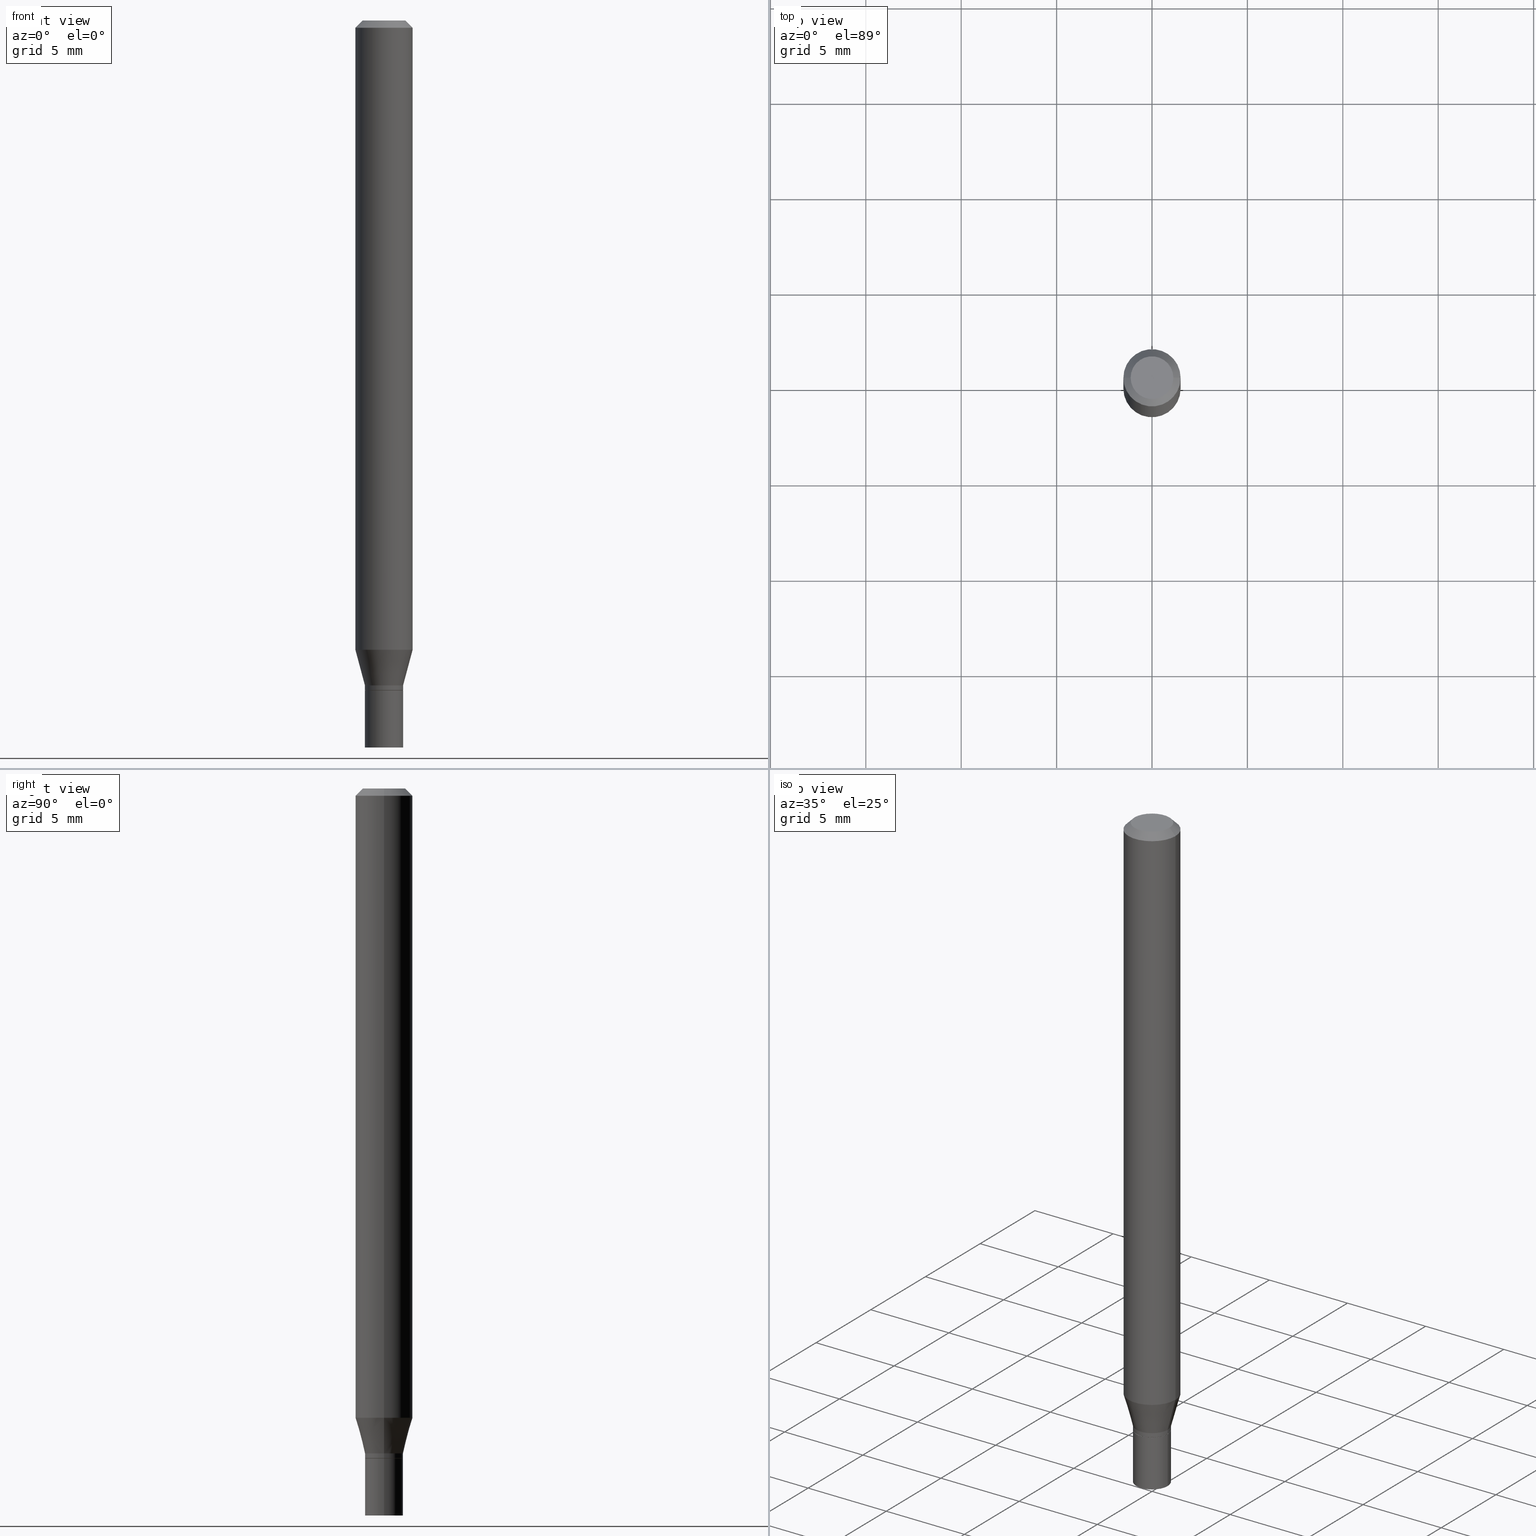
[diagram: canonical four-view strip — front | top / right | iso, engineering-drawing reading convention]
A machine part, canonical four-view strip (front | top / right | iso — engineering-drawing reading convention). The complete STEP part file that produces these views, byte-faithful:
ISO-10303-21;
HEADER;
FILE_DESCRIPTION (( 'STEP AP203' ),
    '1' );
FILE_NAME ('05087.STEP',
    '2024-03-14T17:48:20',
    ( '' ),
    ( '' ),
    'SwSTEP 2.0',
    'SolidWorks 2023',
    '' );
FILE_SCHEMA (( 'CONFIG_CONTROL_DESIGN' ));
ENDSEC;

DATA;
#1 = EDGE_CURVE ( 'NONE', #387, #183, #13, .T. ) ;
#2 = CC_DESIGN_DATE_AND_TIME_ASSIGNMENT ( #299, #267, ( #56 ) ) ;
#3 = LINE ( 'NONE', #316, #199 ) ;
#4 = CARTESIAN_POINT ( 'NONE',  ( 3.354938655205389469E-29, -4.789963248758912396E-15, -1.371900000000000119 ) ) ;
#5 = CYLINDRICAL_SURFACE ( 'NONE', #306, 0.05904999999999999832 ) ;
#6 = DIRECTION ( 'NONE',  ( -1.000000000000000000, 6.982962677686266711E-15, 0.000000000000000000 ) ) ;
#7 = ADVANCED_FACE ( 'NONE', ( #93 ), #226, .F. ) ;
#8 = DIRECTION ( 'NONE',  ( -0.7071067811865656694, 7.493145998870420424E-15, 0.7071067811865294761 ) ) ;
#9 = CIRCLE ( 'NONE', #432, 0.03935000000000000303 ) ;
#10 = ORIENTED_EDGE ( 'NONE', *, *, #29, .F. ) ;
#11 = COORDINATED_UNIVERSAL_TIME_OFFSET ( 5, 0, .BEHIND. ) ;
#12 = ORIENTED_EDGE ( 'NONE', *, *, #370, .F. ) ;
#13 = CIRCLE ( 'NONE', #282, 0.04404999999999999888 ) ;
#14 = AXIS2_PLACEMENT_3D ( 'NONE', #165, #169, #456 ) ;
#15 = EDGE_LOOP ( 'NONE', ( #122, #462, #269, #20 ) ) ;
#16 = MANIFOLD_SOLID_BREP ( 'Body-Move/Copy2[2]', #205 ) ;
#17 = DIRECTION ( 'NONE',  ( 1.000000000000000000, -6.982962677686269077E-15, 0.000000000000000000 ) ) ;
#18 = DIRECTION ( 'NONE',  ( 1.000000000000000000, -6.982962677686256455E-15, 0.000000000000000000 ) ) ;
#19 = EDGE_CURVE ( 'NONE', #430, #419, #3, .T. ) ;
#20 = ORIENTED_EDGE ( 'NONE', *, *, #137, .F. ) ;
#21 = CIRCLE ( 'NONE', #82, 0.03934999999999992670 ) ;
#22 = APPROVAL_STATUS ( 'not_yet_approved' ) ;
#23 = CYLINDRICAL_SURFACE ( 'NONE', #193, 0.03935000000000000303 ) ;
#24 = DIRECTION ( 'NONE',  ( 1.000000000000000000, -6.982962677686269077E-15, 0.000000000000000000 ) ) ;
#25 = DIRECTION ( 'NONE',  ( -2.445468806185136597E-29, 3.491481338843145583E-15, 1.000000000000000000 ) ) ;
#26 = EDGE_CURVE ( 'NONE', #419, #74, #209, .T. ) ;
#27 = DIRECTION ( 'NONE',  ( 1.000000000000000000, -6.982962677686266711E-15, 4.876176775795936353E-29 ) ) ;
#28 = LINE ( 'NONE', #309, #91 ) ;
#29 = EDGE_CURVE ( 'NONE', #259, #74, #384, .T. ) ;
#30 = CYLINDRICAL_SURFACE ( 'NONE', #194, 0.03934999999999992670 ) ;
#31 = CARTESIAN_POINT ( 'NONE',  ( 3.668203209277705088E-31, -5.237222008264718399E-17, -0.01499999999999999944 ) ) ;
#32 = CARTESIAN_POINT ( 'NONE',  ( -0.03935000000000000303, 2.795985665215994447E-16, -1.935600958015305291E-30 ) ) ;
#33 = CYLINDRICAL_SURFACE ( 'NONE', #289, 0.05904999999999999832 ) ;
#34 = CC_DESIGN_APPROVAL ( #58, ( #249 ) ) ;
#35 = CARTESIAN_POINT ( 'NONE',  ( 0.05904999999999999832, -4.945608595596534021E-15, -1.298378599090893371 ) ) ;
#36 = ORIENTED_EDGE ( 'NONE', *, *, #458, .T. ) ;
#37 = DIRECTION ( 'NONE',  ( 2.445468806185136597E-29, -3.491481338843145583E-15, -1.000000000000000000 ) ) ;
#38 = APPLICATION_CONTEXT ( 'configuration controlled 3d designs of mechanical parts and assemblies' ) ;
#39 = EDGE_LOOP ( 'NONE', ( #95, #428 ) ) ;
#40 = CIRCLE ( 'NONE', #426, 0.03934999999999992670 ) ;
#41 = ORIENTED_EDGE ( 'NONE', *, *, #310, .T. ) ;
#42 = ORIENTED_EDGE ( 'NONE', *, *, #239, .T. ) ;
#43 = PERSON_AND_ORGANIZATION_ROLE ( 'creator' ) ;
#44 = DATE_AND_TIME ( #402, #120 ) ;
#45 = ORIENTED_EDGE ( 'NONE', *, *, #66, .F. ) ;
#46 = VECTOR ( 'NONE', #311, 39.37007874015748143 ) ;
#47 = APPLICATION_PROTOCOL_DEFINITION ( 'international standard', 'config_control_design', 1994, #38 ) ;
#48 = APPROVAL_PERSON_ORGANIZATION ( #355, #58, #360 ) ;
#49 = CARTESIAN_POINT ( 'NONE',  ( -0.03934999999999992670, 2.795985665215989023E-16, -1.935600958015301788E-30 ) ) ;
#50 =( NAMED_UNIT ( * ) SI_UNIT ( $, .STERADIAN. ) SOLID_ANGLE_UNIT ( ) );
#51 = EDGE_LOOP ( 'NONE', ( #361, #295, #367, #404 ) ) ;
#52 = ORIENTED_EDGE ( 'NONE', *, *, #277, .T. ) ;
#53 = DIRECTION ( 'NONE',  ( -2.445468806185136597E-29, 3.491481338843145583E-15, 1.000000000000000000 ) ) ;
#54 = ORIENTED_EDGE ( 'NONE', *, *, #26, .T. ) ;
#55 = CONICAL_SURFACE ( 'NONE', #312, 0.03934999999999992670, 0.2617993877991502960 ) ;
#56 = SECURITY_CLASSIFICATION ( '', '', #135 ) ;
#57 = DIRECTION ( 'NONE',  ( 1.000000000000000000, -6.982962677686265133E-15, 4.876176775795935232E-29 ) ) ;
#58 = APPROVAL ( #439, 'UNSPECIFIED' ) ;
#59 = CALENDAR_DATE ( 2024, 14, 3 ) ;
#60 = DIRECTION ( 'NONE',  ( -2.438088387897960049E-29, 3.491481338843145188E-15, 1.000000000000000000 ) ) ;
#61 = DIRECTION ( 'NONE',  ( 1.000000000000000000, -6.982962677686258033E-15, 0.000000000000000000 ) ) ;
#62 = PERSON ( 'UNSPECIFIED', 'UNSPECIFIED', 'UNSPECIFIED', ('UNSPECIFIED'), ('UNSPECIFIED'), ('UNSPECIFIED') ) ;
#63 = APPLICATION_CONTEXT ( 'configuration controlled 3d designs of mechanical parts and assemblies' ) ;
#64 = FACE_OUTER_BOUND ( 'NONE', #129, .T. ) ;
#65 = AXIS2_PLACEMENT_3D ( 'NONE', #195, #60, #329 ) ;
#66 = EDGE_CURVE ( 'NONE', #430, #106, #213, .T. ) ;
#67 = VECTOR ( 'NONE', #204, 39.37007874015748143 ) ;
#68 = FACE_OUTER_BOUND ( 'NONE', #413, .T. ) ;
#69 = ADVANCED_FACE ( 'NONE', ( #262 ), #5, .T. ) ;
#70 = DIRECTION ( 'NONE',  ( -2.445468806185136597E-29, 3.491481338843145583E-15, 1.000000000000000000 ) ) ;
#71 = ORIENTED_EDGE ( 'NONE', *, *, #398, .F. ) ;
#72 = ORIENTED_EDGE ( 'NONE', *, *, #19, .F. ) ;
#73 = FACE_OUTER_BOUND ( 'NONE', #293, .T. ) ;
#74 = VERTEX_POINT ( 'NONE', #292 ) ;
#75 = AXIS2_PLACEMENT_3D ( 'NONE', #340, #96, #301 ) ;
#76 = CARTESIAN_POINT ( 'NONE',  ( 3.668203209277705088E-31, -5.237222008264718399E-17, -0.01499999999999999944 ) ) ;
#77 = EDGE_LOOP ( 'NONE', ( #241, #320, #125, #408 ) ) ;
#78 = CARTESIAN_POINT ( 'NONE',  ( 3.075995059520799729E-16, 0.04404999999999999888, 2.287766971589489619E-17 ) ) ;
#79 = PERSON_AND_ORGANIZATION_ROLE ( 'design_owner' ) ;
#80 = DIRECTION ( 'NONE',  ( -1.000000000000000000, 6.982962677686266711E-15, 0.000000000000000000 ) ) ;
#81 = ORIENTED_EDGE ( 'NONE', *, *, #66, .T. ) ;
#82 = AXIS2_PLACEMENT_3D ( 'NONE', #145, #275, #218 ) ;
#83 = APPROVAL_DATE_TIME ( #44, #58 ) ;
#84 = ADVANCED_FACE ( 'NONE', ( #351 ), #440, .F. ) ;
#85 = VERTEX_POINT ( 'NONE', #35 ) ;
#86 = CARTESIAN_POINT ( 'NONE',  ( -0.03935000000000000303, -4.751451468684432505E-15, -1.381900000000000128 ) ) ;
#87 = COORDINATED_UNIVERSAL_TIME_OFFSET ( 5, 0, .BEHIND. ) ;
#88 = ORIENTED_EDGE ( 'NONE', *, *, #464, .F. ) ;
#89 = DIRECTION ( 'NONE',  ( 2.438088387897960049E-29, -3.491481338843145188E-15, -1.000000000000000000 ) ) ;
#90 = ORIENTED_EDGE ( 'NONE', *, *, #359, .F. ) ;
#91 = VECTOR ( 'NONE', #460, 39.37007874015748143 ) ;
#92 = AXIS2_PLACEMENT_3D ( 'NONE', #336, #421, #24 ) ;
#93 = FACE_OUTER_BOUND ( 'NONE', #39, .T. ) ;
#94 = CALENDAR_DATE ( 2024, 14, 3 ) ;
#95 = ORIENTED_EDGE ( 'NONE', *, *, #1, .T. ) ;
#96 = DIRECTION ( 'NONE',  ( -2.445468806185136597E-29, 3.491481338843145583E-15, 1.000000000000000000 ) ) ;
#97 = EDGE_LOOP ( 'NONE', ( #214, #158, #449, #155 ) ) ;
#98 = COORDINATED_UNIVERSAL_TIME_OFFSET ( 5, 0, .BEHIND. ) ;
#99 = AXIS2_PLACEMENT_3D ( 'NONE', #315, #395, #157 ) ;
#100 = DIRECTION ( 'NONE',  ( -2.445468806185136597E-29, 3.491481338843145583E-15, 1.000000000000000000 ) ) ;
#101 = EDGE_CURVE ( 'NONE', #85, #251, #271, .T. ) ;
#102 = CARTESIAN_POINT ( 'NONE',  ( 0.03934999999999992670, -5.064742830125866524E-15, -1.371900000000000119 ) ) ;
#103 = AXIS2_PLACEMENT_3D ( 'NONE', #407, #89, #222 ) ;
#104 = CARTESIAN_POINT ( 'NONE',  ( -0.03934999999999992670, -4.543533754956323146E-15, -1.381400000000000183 ) ) ;
#105 = DIRECTION ( 'NONE',  ( -2.445468806185136597E-29, 3.491481338843145583E-15, 1.000000000000000000 ) ) ;
#106 = VERTEX_POINT ( 'NONE', #229 ) ;
#107 = ORIENTED_EDGE ( 'NONE', *, *, #118, .F. ) ;
#108 = FACE_OUTER_BOUND ( 'NONE', #15, .T. ) ;
#109 = DIRECTION ( 'NONE',  ( -2.445468806185136877E-29, 3.491481338843145188E-15, 1.000000000000000000 ) ) ;
#110 = DIRECTION ( 'NONE',  ( -2.445468806185136597E-29, 3.491481338843145583E-15, 1.000000000000000000 ) ) ;
#111 = VECTOR ( 'NONE', #465, 39.37007874015748143 ) ;
#112 = LOCAL_TIME ( 13, 48, 20.00000000000000000, #98 ) ;
#113 = DIRECTION ( 'NONE',  ( -2.445468806185136597E-29, 3.491481338843145583E-15, 1.000000000000000000 ) ) ;
#114 = DIRECTION ( 'NONE',  ( -2.445468806185136597E-29, 3.491481338843145583E-15, 1.000000000000000000 ) ) ;
#115 = CC_DESIGN_PERSON_AND_ORGANIZATION_ASSIGNMENT ( #445, #79, ( #233 ) ) ;
#116 = ORIENTED_EDGE ( 'NONE', *, *, #192, .T. ) ;
#117 = DATE_TIME_ROLE ( 'creation_date' ) ;
#118 = EDGE_CURVE ( 'NONE', #126, #266, #168, .T. ) ;
#119 = AXIS2_PLACEMENT_3D ( 'NONE', #308, #447, #268 ) ;
#120 = LOCAL_TIME ( 13, 48, 20.00000000000000000, #257 ) ;
#121 = PERSON_AND_ORGANIZATION_ROLE ( 'design_supplier' ) ;
#122 = ORIENTED_EDGE ( 'NONE', *, *, #399, .F. ) ;
#123 = ORIENTED_EDGE ( 'NONE', *, *, #339, .T. ) ;
#124 = LENGTH_MEASURE_WITH_UNIT ( LENGTH_MEASURE( 0.02539999999999999897 ), #296 );
#125 = ORIENTED_EDGE ( 'NONE', *, *, #441, .T. ) ;
#126 = VERTEX_POINT ( 'NONE', #451 ) ;
#127 = EDGE_LOOP ( 'NONE', ( #88, #107 ) ) ;
#128 = CARTESIAN_POINT ( 'NONE',  ( 0.000000000000000000, 0.000000000000000000, 0.000000000000000000 ) ) ;
#129 = EDGE_LOOP ( 'NONE', ( #443, #54, #10, #405 ) ) ;
#130 = CONICAL_SURFACE ( 'NONE', #318, 0.03885000000000000259, 0.7853981633974739252 ) ;
#131 = CARTESIAN_POINT ( 'NONE',  ( 0.000000000000000000, 0.000000000000000000, 0.000000000000000000 ) ) ;
#132 = LOCAL_TIME ( 13, 48, 20.00000000000000000, #420 ) ;
#133 = CARTESIAN_POINT ( 'NONE',  ( 3.175144362695136916E-29, -4.533264649479159890E-15, -1.298378599090893371 ) ) ;
#134 = ORIENTED_EDGE ( 'NONE', *, *, #345, .F. ) ;
#135 = SECURITY_CLASSIFICATION_LEVEL ( 'unclassified' ) ;
#136 = EDGE_LOOP ( 'NONE', ( #72, #81, #36, #250 ) ) ;
#137 = EDGE_CURVE ( 'NONE', #393, #410, #349, .T. ) ;
#138 = CC_DESIGN_PERSON_AND_ORGANIZATION_ASSIGNMENT ( #215, #43, ( #249 ) ) ;
#139 = ORIENTED_EDGE ( 'NONE', *, *, #441, .F. ) ;
#140 = DIRECTION ( 'NONE',  ( -0.2588190451025216832, 5.211531920934551831E-15, 0.9659258262890679791 ) ) ;
#141 = CLOSED_SHELL ( 'NONE', ( #190, #181, #414, #84 ) ) ;
#142 = ORGANIZATION ( 'UNSPECIFIED', 'UNSPECIFIED', '' ) ;
#143 = CARTESIAN_POINT ( 'NONE',  ( 3.379393343267239894E-29, -4.824878062147343257E-15, -1.381900000000000128 ) ) ;
#144 = ADVANCED_FACE ( 'NONE', ( #64 ), #374, .T. ) ;
#145 = CARTESIAN_POINT ( 'NONE',  ( 3.378170608864148213E-29, -4.823132321477921753E-15, -1.381400000000000183 ) ) ;
#146 = APPROVAL_PERSON_ORGANIZATION ( #227, #378, #230 ) ;
#147 = PRODUCT_DEFINITION ( 'UNKNOWN', '', #249, #338 ) ;
#148 = DIRECTION ( 'NONE',  ( -2.445468806185136597E-29, 3.491481338843145583E-15, 1.000000000000000000 ) ) ;
#149 = DIRECTION ( 'NONE',  ( -2.445468806185136597E-29, 3.491481338843145583E-15, 1.000000000000000000 ) ) ;
#150 = CARTESIAN_POINT ( 'NONE',  ( 0.03934999999999992670, -5.097911902844875881E-15, -1.381400000000000183 ) ) ;
#151 = AXIS2_PLACEMENT_3D ( 'NONE', #433, #113, #253 ) ;
#152 = FACE_OUTER_BOUND ( 'NONE', #364, .T. ) ;
#153 = EDGE_CURVE ( 'NONE', #74, #251, #297, .T. ) ;
#154 = LINE ( 'NONE', #322, #412 ) ;
#155 = ORIENTED_EDGE ( 'NONE', *, *, #418, .F. ) ;
#156 = DIRECTION ( 'NONE',  ( -2.445468806185136877E-29, 3.491481338843145188E-15, 1.000000000000000000 ) ) ;
#157 = DIRECTION ( 'NONE',  ( 1.000000000000000000, -6.982962677686256455E-15, 0.000000000000000000 ) ) ;
#158 = ORIENTED_EDGE ( 'NONE', *, *, #399, .T. ) ;
#159 = PERSON_AND_ORGANIZATION ( #62, #142 ) ;
#160 = DIRECTION ( 'NONE',  ( 2.438088387897960049E-29, -3.491481338843145188E-15, -1.000000000000000000 ) ) ;
#161 = CC_DESIGN_PERSON_AND_ORGANIZATION_ASSIGNMENT ( #324, #121, ( #249 ) ) ;
#162 = EDGE_CURVE ( 'NONE', #251, #85, #452, .T. ) ;
#163 = AXIS2_PLACEMENT_3D ( 'NONE', #390, #206, #350 ) ;
#164 = AXIS2_PLACEMENT_3D ( 'NONE', #131, #221, #365 ) ;
#165 = CARTESIAN_POINT ( 'NONE',  ( -8.641182519006283330E-45, 1.233731848647590289E-30, 3.533548453838708869E-16 ) ) ;
#166 = MANIFOLD_SOLID_BREP ( 'Body-Move/Copy2[1]', #141 ) ;
#167 = DIRECTION ( 'NONE',  ( -2.445468806185136597E-29, 3.491481338843145583E-15, 1.000000000000000000 ) ) ;
#168 = CIRCLE ( 'NONE', #119, 0.03935000000000000303 ) ;
#169 = DIRECTION ( 'NONE',  ( -2.445468806185136597E-29, 3.491481338843145583E-15, 1.000000000000000000 ) ) ;
#170 = PRODUCT_DEFINITION_SHAPE ( 'NONE', 'NONE',  #147 ) ;
#171 = CARTESIAN_POINT ( 'NONE',  ( 0.05904999999999999832, -4.647161662000212105E-16, -0.01499999999999999944 ) ) ;
#172 = PRODUCT_RELATED_PRODUCT_CATEGORY ( 'detail', '', ( #233 ) ) ;
#173 = AXIS2_PLACEMENT_3D ( 'NONE', #133, #304, #228 ) ;
#174 = CYLINDRICAL_SURFACE ( 'NONE', #319, 0.03935000000000000303 ) ;
#175 = LINE ( 'NONE', #245, #276 ) ;
#176 = CARTESIAN_POINT ( 'NONE',  ( 3.354938655205389469E-29, -4.789963248758912396E-15, -1.371900000000000119 ) ) ;
#177 = FACE_OUTER_BOUND ( 'NONE', #51, .T. ) ;
#178 = DIRECTION ( 'NONE',  ( 1.000000000000000000, -6.982962677686265922E-15, 4.819687581474398999E-29 ) ) ;
#179 = AXIS2_PLACEMENT_3D ( 'NONE', #31, #203, #280 ) ;
#180 = DIRECTION ( 'NONE',  ( -1.000000000000000000, 6.982962677686265922E-15, -4.876176775795935793E-29 ) ) ;
#181 = ADVANCED_FACE ( 'NONE', ( #379 ), #265, .F. ) ;
#182 = CARTESIAN_POINT ( 'NONE',  ( 3.668203209277704895E-29, -5.237222008264718177E-15, -1.500000000000000222 ) ) ;
#183 = VERTEX_POINT ( 'NONE', #383 ) ;
#184 =( CONVERSION_BASED_UNIT ( 'INCH', #124 ) LENGTH_UNIT ( ) NAMED_UNIT ( #434 ) );
#185 = AXIS2_PLACEMENT_3D ( 'NONE', #417, #423, #57 ) ;
#186 =( GEOMETRIC_REPRESENTATION_CONTEXT ( 3 ) GLOBAL_UNCERTAINTY_ASSIGNED_CONTEXT ( ( #258 ) ) GLOBAL_UNIT_ASSIGNED_CONTEXT ( ( #184, #409, #50 ) ) REPRESENTATION_CONTEXT ( 'NONE', 'WORKASPACE' ) );
#187 = CARTESIAN_POINT ( 'NONE',  ( 0.03934999999999992670, -2.747795813669540294E-16, 1.918775561275696870E-30 ) ) ;
#188 = CC_DESIGN_PERSON_AND_ORGANIZATION_ASSIGNMENT ( #334, #381, ( #56 ) ) ;
#189 = EDGE_LOOP ( 'NONE', ( #116, #380, #12, #243 ) ) ;
#190 = ADVANCED_FACE ( 'NONE', ( #196 ), #23, .T. ) ;
#191 = CARTESIAN_POINT ( 'NONE',  ( 3.379393343267239894E-29, -4.824878062147343257E-15, -1.381900000000000128 ) ) ;
#192 = EDGE_CURVE ( 'NONE', #106, #430, #325, .T. ) ;
#193 = AXIS2_PLACEMENT_3D ( 'NONE', #372, #53, #337 ) ;
#194 = AXIS2_PLACEMENT_3D ( 'NONE', #343, #105, #279 ) ;
#195 = CARTESIAN_POINT ( 'NONE',  ( 3.576687321579069994E-29, -5.368277968210015545E-15, -1.500000000000000222 ) ) ;
#196 = FACE_OUTER_BOUND ( 'NONE', #97, .T. ) ;
#197 = CARTESIAN_POINT ( 'NONE',  ( 0.03934999999999992670, -5.064742830125866524E-15, -1.371900000000000119 ) ) ;
#198 = APPROVAL_DATE_TIME ( #459, #378 ) ;
#199 = VECTOR ( 'NONE', #8, 39.37007874015748143 ) ;
#200 = LINE ( 'NONE', #255, #376 ) ;
#201 = LINE ( 'NONE', #394, #46 ) ;
#202 = DIRECTION ( 'NONE',  ( 1.000000000000000000, -6.982962677686266711E-15, 4.876176775795936353E-29 ) ) ;
#203 = DIRECTION ( 'NONE',  ( -2.445468806185136597E-29, 3.491481338843145583E-15, 1.000000000000000000 ) ) ;
#204 = DIRECTION ( 'NONE',  ( -2.445468806185136877E-29, 3.491481338843145188E-15, 1.000000000000000000 ) ) ;
#205 = CLOSED_SHELL ( 'NONE', ( #144, #234, #352, #69, #219, #285, #321, #377, #7, #425, #354, #274 ) ) ;
#206 = DIRECTION ( 'NONE',  ( -2.445468806185136597E-29, 3.491481338843145583E-15, 1.000000000000000000 ) ) ;
#207 = CARTESIAN_POINT ( 'NONE',  ( -0.05904999999999999832, -1.873242949314564189E-15, -0.01499999999999999944 ) ) ;
#208 = ORIENTED_EDGE ( 'NONE', *, *, #303, .F. ) ;
#209 = LINE ( 'NONE', #49, #332 ) ;
#210 = APPROVAL_STATUS ( 'not_yet_approved' ) ;
#211 = ORIENTED_EDGE ( 'NONE', *, *, #162, .T. ) ;
#212 = CARTESIAN_POINT ( 'NONE',  ( -0.04404999999999999888, 3.337856159934040055E-16, 3.533548453838686682E-16 ) ) ;
#213 = CIRCLE ( 'NONE', #99, 0.03885000000000000259 ) ;
#214 = ORIENTED_EDGE ( 'NONE', *, *, #464, .T. ) ;
#215 = PERSON_AND_ORGANIZATION ( #62, #142 ) ;
#216 = EDGE_LOOP ( 'NONE', ( #403, #45 ) ) ;
#217 = CALENDAR_DATE ( 2024, 14, 3 ) ;
#218 = DIRECTION ( 'NONE',  ( 1.000000000000000000, -6.982962677686258033E-15, 0.000000000000000000 ) ) ;
#219 = ADVANCED_FACE ( 'NONE', ( #232 ), #55, .T. ) ;
#220 = LINE ( 'NONE', #32, #67 ) ;
#221 = DIRECTION ( 'NONE',  ( 0.000000000000000000, 0.000000000000000000, 1.000000000000000000 ) ) ;
#222 = DIRECTION ( 'NONE',  ( -1.000000000000000000, 6.982962677686265922E-15, -4.876176775795935793E-29 ) ) ;
#223 = ORIENTED_EDGE ( 'NONE', *, *, #153, .T. ) ;
#224 = AXIS2_PLACEMENT_3D ( 'NONE', #76, #37, #6 ) ;
#225 = APPROVAL_DATE_TIME ( #288, #415 ) ;
#226 = PLANE ( 'NONE',  #298 ) ;
#227 = PERSON_AND_ORGANIZATION ( #62, #142 ) ;
#228 = DIRECTION ( 'NONE',  ( 1.000000000000000000, -6.982962677686273021E-15, 0.000000000000000000 ) ) ;
#229 = CARTESIAN_POINT ( 'NONE',  ( 0.03885000000000000259, -5.096166162175454377E-15, -1.381900000000000128 ) ) ;
#230 = APPROVAL_ROLE ( '' ) ;
#231 = SHAPE_DEFINITION_REPRESENTATION ( #170, #252 ) ;
#232 = FACE_OUTER_BOUND ( 'NONE', #353, .T. ) ;
#233 = PRODUCT ( '05087', '05087', '', ( #406 ) ) ;
#234 = ADVANCED_FACE ( 'NONE', ( #422 ), #130, .T. ) ;
#235 = CARTESIAN_POINT ( 'NONE',  ( 0.03935000000000000303, -5.512001589631673094E-15, -1.500000000000000222 ) ) ;
#236 = AXIS2_PLACEMENT_3D ( 'NONE', #382, #416, #61 ) ;
#237 = CC_DESIGN_SECURITY_CLASSIFICATION ( #56, ( #249 ) ) ;
#238 = DIRECTION ( 'NONE',  ( 1.000000000000000000, -6.982962677686258033E-15, 0.000000000000000000 ) ) ;
#239 = EDGE_CURVE ( 'NONE', #419, #344, #247, .T. ) ;
#240 = DIRECTION ( 'NONE',  ( 1.000000000000000000, -6.982962677686265922E-15, 4.876176775795935793E-29 ) ) ;
#241 = ORIENTED_EDGE ( 'NONE', *, *, #389, .F. ) ;
#242 = CARTESIAN_POINT ( 'NONE',  ( 3.354938655205389469E-29, -4.789963248758912396E-15, -1.371900000000000119 ) ) ;
#243 = ORIENTED_EDGE ( 'NONE', *, *, #458, .F. ) ;
#244 = DIRECTION ( 'NONE',  ( -2.445468806185136597E-29, 3.491481338843145583E-15, 1.000000000000000000 ) ) ;
#245 = CARTESIAN_POINT ( 'NONE',  ( 0.05904999999999999832, -4.123439461173740327E-16, 2.879382386107500220E-30 ) ) ;
#246 = DIRECTION ( 'NONE',  ( 1.000000000000000000, -6.982962677686266711E-15, 4.876176775795936353E-29 ) ) ;
#247 = CIRCLE ( 'NONE', #236, 0.03934999999999992670 ) ;
#248 = DIRECTION ( 'NONE',  ( 1.000000000000000000, -6.982962677686258033E-15, 0.000000000000000000 ) ) ;
#249 = PRODUCT_DEFINITION_FORMATION_WITH_SPECIFIED_SOURCE ( 'ANY', '', #233, .NOT_KNOWN. ) ;
#250 = ORIENTED_EDGE ( 'NONE', *, *, #239, .F. ) ;
#251 = VERTEX_POINT ( 'NONE', #424 ) ;
#252 = ADVANCED_BREP_SHAPE_REPRESENTATION ( '05087', ( #166, #16, #164 ), #186 ) ;
#253 = DIRECTION ( 'NONE',  ( 1.000000000000000000, -6.982962677686256455E-15, 0.000000000000000000 ) ) ;
#254 = DIRECTION ( 'NONE',  ( 1.000000000000000000, -6.982962677686258033E-15, 0.000000000000000000 ) ) ;
#255 = CARTESIAN_POINT ( 'NONE',  ( 0.03935000000000000303, -2.747795813669546211E-16, 1.918775561275701074E-30 ) ) ;
#256 = ORIENTED_EDGE ( 'NONE', *, *, #1, .F. ) ;
#257 = COORDINATED_UNIVERSAL_TIME_OFFSET ( 5, 0, .BEHIND. ) ;
#258 = UNCERTAINTY_MEASURE_WITH_UNIT (LENGTH_MEASURE( 1.000000000000000082E-05 ), #184, 'distance_accuracy_value', 'NONE');
#259 = VERTEX_POINT ( 'NONE', #197 ) ;
#260 = LINE ( 'NONE', #317, #313 ) ;
#261 = ORIENTED_EDGE ( 'NONE', *, *, #444, .T. ) ;
#262 = FACE_OUTER_BOUND ( 'NONE', #281, .T. ) ;
#263 = AXIS2_PLACEMENT_3D ( 'NONE', #191, #25, #18 ) ;
#264 = DATE_AND_TIME ( #442, #385 ) ;
#265 = PLANE ( 'NONE',  #65 ) ;
#266 = VERTEX_POINT ( 'NONE', #235 ) ;
#267 = DATE_TIME_ROLE ( 'classification_date' ) ;
#268 = DIRECTION ( 'NONE',  ( 1.000000000000000000, -6.982962677686269077E-15, 0.000000000000000000 ) ) ;
#269 = ORIENTED_EDGE ( 'NONE', *, *, #418, .T. ) ;
#270 = CARTESIAN_POINT ( 'NONE',  ( 3.354938655205389469E-29, -4.789963248758912396E-15, -1.371900000000000119 ) ) ;
#271 = CIRCLE ( 'NONE', #375, 0.05904999999999999832 ) ;
#272 = DIRECTION ( 'NONE',  ( -2.438088387897960049E-29, 3.491481338843145188E-15, 1.000000000000000000 ) ) ;
#273 = CARTESIAN_POINT ( 'NONE',  ( 3.379393343267239894E-29, -4.824878062147343257E-15, -1.381900000000000128 ) ) ;
#274 = ADVANCED_FACE ( 'NONE', ( #68 ), #30, .T. ) ;
#275 = DIRECTION ( 'NONE',  ( -2.445468806185136597E-29, 3.491481338843145583E-15, 1.000000000000000000 ) ) ;
#276 = VECTOR ( 'NONE', #386, 39.37007874015748143 ) ;
#277 = EDGE_CURVE ( 'NONE', #387, #330, #201, .T. ) ;
#278 = ORIENTED_EDGE ( 'NONE', *, *, #339, .F. ) ;
#279 = DIRECTION ( 'NONE',  ( 1.000000000000000000, -6.982962677686265133E-15, 4.876176775795935232E-29 ) ) ;
#280 = DIRECTION ( 'NONE',  ( 1.000000000000000000, -6.982962677686266711E-15, 0.000000000000000000 ) ) ;
#281 = EDGE_LOOP ( 'NONE', ( #300, #397, #139, #302 ) ) ;
#282 = AXIS2_PLACEMENT_3D ( 'NONE', #429, #435, #178 ) ;
#283 = FACE_OUTER_BOUND ( 'NONE', #136, .T. ) ;
#284 = CARTESIAN_POINT ( 'NONE',  ( 3.668203209277705088E-31, -5.237222008264718399E-17, -0.01499999999999999944 ) ) ;
#285 = ADVANCED_FACE ( 'NONE', ( #177 ), #438, .T. ) ;
#286 = VERTEX_POINT ( 'NONE', #171 ) ;
#287 = CC_DESIGN_DATE_AND_TIME_ASSIGNMENT ( #264, #117, ( #147 ) ) ;
#288 = DATE_AND_TIME ( #217, #454 ) ;
#289 = AXIS2_PLACEMENT_3D ( 'NONE', #346, #70, #202 ) ;
#290 = CIRCLE ( 'NONE', #179, 0.05904999999999999832 ) ;
#291 = DIRECTION ( 'NONE',  ( -2.445468806185136597E-29, 3.491481338843145583E-15, 1.000000000000000000 ) ) ;
#292 = CARTESIAN_POINT ( 'NONE',  ( -0.03934999999999992670, -4.312026923125067488E-15, -1.371900000000000119 ) ) ;
#293 = EDGE_LOOP ( 'NONE', ( #71, #211, #41, #278 ) ) ;
#294 = PERSON_AND_ORGANIZATION ( #62, #142 ) ;
#295 = ORIENTED_EDGE ( 'NONE', *, *, #345, .T. ) ;
#296 =( LENGTH_UNIT ( ) NAMED_UNIT ( * ) SI_UNIT ( $, .METRE. ) );
#297 = LINE ( 'NONE', #457, #411 ) ;
#298 = AXIS2_PLACEMENT_3D ( 'NONE', #78, #160, #180 ) ;
#299 = DATE_AND_TIME ( #94, #112 ) ;
#300 = ORIENTED_EDGE ( 'NONE', *, *, #101, .T. ) ;
#301 = DIRECTION ( 'NONE',  ( 1.000000000000000000, -6.982962677686269077E-15, 0.000000000000000000 ) ) ;
#302 = ORIENTED_EDGE ( 'NONE', *, *, #310, .F. ) ;
#303 = EDGE_CURVE ( 'NONE', #259, #85, #348, .T. ) ;
#304 = DIRECTION ( 'NONE',  ( -2.445468806185136597E-29, 3.491481338843145583E-15, 1.000000000000000000 ) ) ;
#305 = DIRECTION ( 'NONE',  ( 1.000000000000000000, -6.982962677686256455E-15, 0.000000000000000000 ) ) ;
#306 = AXIS2_PLACEMENT_3D ( 'NONE', #128, #371, #246 ) ;
#307 = CC_DESIGN_APPROVAL ( #378, ( #56 ) ) ;
#308 = CARTESIAN_POINT ( 'NONE',  ( 3.668203209277704895E-29, -5.237222008264718177E-15, -1.500000000000000222 ) ) ;
#309 = CARTESIAN_POINT ( 'NONE',  ( 0.05904999999999999832, -4.574846268510561447E-16, -0.01499999999999999944 ) ) ;
#310 = EDGE_CURVE ( 'NONE', #85, #286, #175, .T. ) ;
#311 = DIRECTION ( 'NONE',  ( -0.7071067811865392461, 2.468850131082170286E-15, -0.7071067811865557884 ) ) ;
#312 = AXIS2_PLACEMENT_3D ( 'NONE', #270, #167, #331 ) ;
#313 = VECTOR ( 'NONE', #362, 39.37007874015748143 ) ;
#314 = ORIENTED_EDGE ( 'NONE', *, *, #137, .T. ) ;
#315 = CARTESIAN_POINT ( 'NONE',  ( 3.379393343267239894E-29, -4.824878062147343257E-15, -1.381900000000000128 ) ) ;
#316 = CARTESIAN_POINT ( 'NONE',  ( -0.03885000000000000259, -4.548832209304543971E-15, -1.381900000000000128 ) ) ;
#317 = CARTESIAN_POINT ( 'NONE',  ( -0.05904999999999999832, 4.195754854663391478E-16, -2.904631170795521892E-30 ) ) ;
#318 = AXIS2_PLACEMENT_3D ( 'NONE', #273, #100, #305 ) ;
#319 = AXIS2_PLACEMENT_3D ( 'NONE', #463, #244, #27 ) ;
#320 = ORIENTED_EDGE ( 'NONE', *, *, #359, .T. ) ;
#321 = ADVANCED_FACE ( 'NONE', ( #73 ), #33, .T. ) ;
#322 = CARTESIAN_POINT ( 'NONE',  ( 0.03885000000000000259, -5.096166162175454377E-15, -1.381900000000000128 ) ) ;
#323 = EDGE_LOOP ( 'NONE', ( #400, #314 ) ) ;
#324 = PERSON_AND_ORGANIZATION ( #62, #142 ) ;
#325 = CIRCLE ( 'NONE', #263, 0.03885000000000000259 ) ;
#326 = CONICAL_SURFACE ( 'NONE', #342, 0.05904999999999999832, 0.7853981633974366217 ) ;
#327 = APPLICATION_PROTOCOL_DEFINITION ( 'international standard', 'config_control_design', 1994, #63 ) ;
#328 = DIRECTION ( 'NONE',  ( 0.7071067811865656694, -2.468850131082446387E-15, 0.7071067811865294761 ) ) ;
#329 = DIRECTION ( 'NONE',  ( 1.000000000000000000, -6.982962677686265922E-15, 4.876176775795935793E-29 ) ) ;
#330 = VERTEX_POINT ( 'NONE', #207 ) ;
#331 = DIRECTION ( 'NONE',  ( 1.000000000000000000, -6.982962677686258033E-15, 0.000000000000000000 ) ) ;
#332 = VECTOR ( 'NONE', #109, 39.37007874015748143 ) ;
#333 = CIRCLE ( 'NONE', #14, 0.04404999999999999888 ) ;
#334 = PERSON_AND_ORGANIZATION ( #62, #142 ) ;
#335 = ORIENTED_EDGE ( 'NONE', *, *, #26, .F. ) ;
#336 = CARTESIAN_POINT ( 'NONE',  ( 3.379393343267239894E-29, -4.824878062147343257E-15, -1.381900000000000128 ) ) ;
#337 = DIRECTION ( 'NONE',  ( 1.000000000000000000, -6.982962677686266711E-15, 4.876176775795936353E-29 ) ) ;
#338 = DESIGN_CONTEXT ( 'detailed design', #63, 'design' ) ;
#339 = EDGE_CURVE ( 'NONE', #330, #286, #446, .T. ) ;
#340 = CARTESIAN_POINT ( 'NONE',  ( 3.379393343267239894E-29, -4.824878062147343257E-15, -1.381900000000000128 ) ) ;
#341 = CONICAL_SURFACE ( 'NONE', #151, 0.03885000000000000259, 0.7853981633974739252 ) ;
#342 = AXIS2_PLACEMENT_3D ( 'NONE', #284, #436, #80 ) ;
#343 = CARTESIAN_POINT ( 'NONE',  ( 0.000000000000000000, 0.000000000000000000, 0.000000000000000000 ) ) ;
#344 = VERTEX_POINT ( 'NONE', #150 ) ;
#345 = EDGE_CURVE ( 'NONE', #74, #259, #40, .T. ) ;
#346 = CARTESIAN_POINT ( 'NONE',  ( 0.000000000000000000, 0.000000000000000000, 0.000000000000000000 ) ) ;
#347 = CARTESIAN_POINT ( 'NONE',  ( -0.03885000000000000259, -4.546182982130432770E-15, -1.381900000000000128 ) ) ;
#348 = LINE ( 'NONE', #102, #111 ) ;
#349 = CIRCLE ( 'NONE', #75, 0.03935000000000000303 ) ;
#350 = DIRECTION ( 'NONE',  ( 1.000000000000000000, -6.982962677686266711E-15, 0.000000000000000000 ) ) ;
#351 = FACE_OUTER_BOUND ( 'NONE', #323, .T. ) ;
#352 = ADVANCED_FACE ( 'NONE', ( #392 ), #431, .T. ) ;
#353 = EDGE_LOOP ( 'NONE', ( #369, #223, #357, #208 ) ) ;
#354 = ADVANCED_FACE ( 'NONE', ( #283 ), #341, .T. ) ;
#355 = PERSON_AND_ORGANIZATION ( #62, #142 ) ;
#356 = AXIS2_PLACEMENT_3D ( 'NONE', #242, #110, #238 ) ;
#357 = ORIENTED_EDGE ( 'NONE', *, *, #101, .F. ) ;
#358 = VECTOR ( 'NONE', #156, 39.37007874015748143 ) ;
#359 = EDGE_CURVE ( 'NONE', #183, #286, #28, .T. ) ;
#360 = APPROVAL_ROLE ( '' ) ;
#361 = ORIENTED_EDGE ( 'NONE', *, *, #153, .F. ) ;
#362 = DIRECTION ( 'NONE',  ( -2.445468806185136877E-29, 3.491481338843145188E-15, 1.000000000000000000 ) ) ;
#363 = APPROVAL_ROLE ( '' ) ;
#364 = EDGE_LOOP ( 'NONE', ( #90, #256, #52, #123 ) ) ;
#365 = DIRECTION ( 'NONE',  ( 1.000000000000000000, 0.000000000000000000, 0.000000000000000000 ) ) ;
#366 = AXIS2_PLACEMENT_3D ( 'NONE', #176, #114, #254 ) ;
#367 = ORIENTED_EDGE ( 'NONE', *, *, #303, .T. ) ;
#368 = LINE ( 'NONE', #187, #358 ) ;
#369 = ORIENTED_EDGE ( 'NONE', *, *, #29, .T. ) ;
#370 = EDGE_CURVE ( 'NONE', #344, #419, #21, .T. ) ;
#371 = DIRECTION ( 'NONE',  ( -2.445468806185136597E-29, 3.491481338843145583E-15, 1.000000000000000000 ) ) ;
#372 = CARTESIAN_POINT ( 'NONE',  ( 0.000000000000000000, 0.000000000000000000, 0.000000000000000000 ) ) ;
#373 = CC_DESIGN_PERSON_AND_ORGANIZATION_ASSIGNMENT ( #294, #437, ( #147 ) ) ;
#374 = CYLINDRICAL_SURFACE ( 'NONE', #185, 0.03934999999999992670 ) ;
#375 = AXIS2_PLACEMENT_3D ( 'NONE', #391, #149, #450 ) ;
#376 = VECTOR ( 'NONE', #461, 39.37007874015748143 ) ;
#377 = ADVANCED_FACE ( 'NONE', ( #152 ), #326, .T. ) ;
#378 = APPROVAL ( #22, 'UNSPECIFIED' ) ;
#379 = FACE_OUTER_BOUND ( 'NONE', #127, .T. ) ;
#380 = ORIENTED_EDGE ( 'NONE', *, *, #19, .T. ) ;
#381 = PERSON_AND_ORGANIZATION_ROLE ( 'classification_officer' ) ;
#382 = CARTESIAN_POINT ( 'NONE',  ( 3.378170608864148213E-29, -4.823132321477921753E-15, -1.381400000000000183 ) ) ;
#383 = CARTESIAN_POINT ( 'NONE',  ( 0.04404999999999999888, -3.798447818264454163E-16, 3.533548453838733521E-16 ) ) ;
#384 = CIRCLE ( 'NONE', #366, 0.03934999999999992670 ) ;
#385 = LOCAL_TIME ( 13, 48, 20.00000000000000000, #11 ) ;
#386 = DIRECTION ( 'NONE',  ( -2.445468806185136877E-29, 3.491481338843145188E-15, 1.000000000000000000 ) ) ;
#387 = VERTEX_POINT ( 'NONE', #212 ) ;
#388 = EDGE_CURVE ( 'NONE', #410, #393, #401, .T. ) ;
#389 = EDGE_CURVE ( 'NONE', #183, #387, #333, .T. ) ;
#390 = CARTESIAN_POINT ( 'NONE',  ( 3.668203209277705088E-31, -5.237222008264718399E-17, -0.01499999999999999944 ) ) ;
#391 = CARTESIAN_POINT ( 'NONE',  ( 3.175144362695136916E-29, -4.533264649479159890E-15, -1.298378599090893371 ) ) ;
#392 = FACE_OUTER_BOUND ( 'NONE', #77, .T. ) ;
#393 = VERTEX_POINT ( 'NONE', #86 ) ;
#394 = CARTESIAN_POINT ( 'NONE',  ( -0.05904999999999999832, 3.599717260347268549E-16, -0.01499999999999999944 ) ) ;
#395 = DIRECTION ( 'NONE',  ( -2.445468806185136597E-29, 3.491481338843145583E-15, 1.000000000000000000 ) ) ;
#396 = FACE_OUTER_BOUND ( 'NONE', #216, .T. ) ;
#397 = ORIENTED_EDGE ( 'NONE', *, *, #398, .T. ) ;
#398 = EDGE_CURVE ( 'NONE', #251, #330, #260, .T. ) ;
#399 = EDGE_CURVE ( 'NONE', #126, #393, #220, .T. ) ;
#400 = ORIENTED_EDGE ( 'NONE', *, *, #388, .T. ) ;
#401 = CIRCLE ( 'NONE', #92, 0.03935000000000000303 ) ;
#402 = CALENDAR_DATE ( 2024, 14, 3 ) ;
#403 = ORIENTED_EDGE ( 'NONE', *, *, #192, .F. ) ;
#404 = ORIENTED_EDGE ( 'NONE', *, *, #162, .F. ) ;
#405 = ORIENTED_EDGE ( 'NONE', *, *, #444, .F. ) ;
#406 = MECHANICAL_CONTEXT ( 'NONE', #38, 'mechanical' ) ;
#407 = CARTESIAN_POINT ( 'NONE',  ( 2.747795813669883942E-16, 0.03934999999999518050, -1.381900000000000350 ) ) ;
#408 = ORIENTED_EDGE ( 'NONE', *, *, #277, .F. ) ;
#409 =( NAMED_UNIT ( * ) PLANE_ANGLE_UNIT ( ) SI_UNIT ( $, .RADIAN. ) );
#410 = VERTEX_POINT ( 'NONE', #455 ) ;
#411 = VECTOR ( 'NONE', #140, 39.37007874015748143 ) ;
#412 = VECTOR ( 'NONE', #328, 39.37007874015748143 ) ;
#413 = EDGE_LOOP ( 'NONE', ( #335, #42, #261, #134 ) ) ;
#414 = ADVANCED_FACE ( 'NONE', ( #108 ), #174, .T. ) ;
#415 = APPROVAL ( #210, 'UNSPECIFIED' ) ;
#416 = DIRECTION ( 'NONE',  ( -2.445468806185136597E-29, 3.491481338843145583E-15, 1.000000000000000000 ) ) ;
#417 = CARTESIAN_POINT ( 'NONE',  ( 0.000000000000000000, 0.000000000000000000, 0.000000000000000000 ) ) ;
#418 = EDGE_CURVE ( 'NONE', #266, #410, #200, .T. ) ;
#419 = VERTEX_POINT ( 'NONE', #104 ) ;
#420 = COORDINATED_UNIVERSAL_TIME_OFFSET ( 5, 0, .BEHIND. ) ;
#421 = DIRECTION ( 'NONE',  ( -2.445468806185136597E-29, 3.491481338843145583E-15, 1.000000000000000000 ) ) ;
#422 = FACE_OUTER_BOUND ( 'NONE', #189, .T. ) ;
#423 = DIRECTION ( 'NONE',  ( -2.445468806185136597E-29, 3.491481338843145583E-15, 1.000000000000000000 ) ) ;
#424 = CARTESIAN_POINT ( 'NONE',  ( -0.05904999999999999832, -4.113689164012821186E-15, -1.298378599090893371 ) ) ;
#425 = ADVANCED_FACE ( 'NONE', ( #396 ), #453, .F. ) ;
#426 = AXIS2_PLACEMENT_3D ( 'NONE', #4, #148, #248 ) ;
#427 = APPROVAL_PERSON_ORGANIZATION ( #159, #415, #363 ) ;
#428 = ORIENTED_EDGE ( 'NONE', *, *, #389, .T. ) ;
#429 = CARTESIAN_POINT ( 'NONE',  ( -8.641182519006283330E-45, 1.233731848647590289E-30, 3.533548453838708869E-16 ) ) ;
#430 = VERTEX_POINT ( 'NONE', #347 ) ;
#431 = CONICAL_SURFACE ( 'NONE', #224, 0.05904999999999999832, 0.7853981633974366217 ) ;
#432 = AXIS2_PLACEMENT_3D ( 'NONE', #182, #291, #17 ) ;
#433 = CARTESIAN_POINT ( 'NONE',  ( 3.379393343267239894E-29, -4.824878062147343257E-15, -1.381900000000000128 ) ) ;
#434 = DIMENSIONAL_EXPONENTS ( 1.000000000000000000, 0.000000000000000000, 0.000000000000000000, 0.000000000000000000, 0.000000000000000000, 0.000000000000000000, 0.000000000000000000 ) ;
#435 = DIRECTION ( 'NONE',  ( -2.445468806185136597E-29, 3.491481338843145583E-15, 1.000000000000000000 ) ) ;
#436 = DIRECTION ( 'NONE',  ( 2.445468806185136597E-29, -3.491481338843145583E-15, -1.000000000000000000 ) ) ;
#437 = PERSON_AND_ORGANIZATION_ROLE ( 'creator' ) ;
#438 = CONICAL_SURFACE ( 'NONE', #356, 0.03934999999999992670, 0.2617993877991502960 ) ;
#439 = APPROVAL_STATUS ( 'not_yet_approved' ) ;
#440 = PLANE ( 'NONE',  #103 ) ;
#441 = EDGE_CURVE ( 'NONE', #286, #330, #290, .T. ) ;
#442 = CALENDAR_DATE ( 2024, 14, 3 ) ;
#443 = ORIENTED_EDGE ( 'NONE', *, *, #370, .T. ) ;
#444 = EDGE_CURVE ( 'NONE', #344, #259, #368, .T. ) ;
#445 = PERSON_AND_ORGANIZATION ( #62, #142 ) ;
#446 = CIRCLE ( 'NONE', #163, 0.05904999999999999832 ) ;
#447 = DIRECTION ( 'NONE',  ( -2.445468806185136597E-29, 3.491481338843145583E-15, 1.000000000000000000 ) ) ;
#448 = AXIS2_PLACEMENT_3D ( 'NONE', #143, #272, #240 ) ;
#449 = ORIENTED_EDGE ( 'NONE', *, *, #388, .F. ) ;
#450 = DIRECTION ( 'NONE',  ( 1.000000000000000000, -6.982962677686273021E-15, 0.000000000000000000 ) ) ;
#451 = CARTESIAN_POINT ( 'NONE',  ( -0.03935000000000000303, -4.751451468684432505E-15, -1.500000000000000222 ) ) ;
#452 = CIRCLE ( 'NONE', #173, 0.05904999999999999832 ) ;
#453 = PLANE ( 'NONE',  #448 ) ;
#454 = LOCAL_TIME ( 13, 48, 20.00000000000000000, #87 ) ;
#455 = CARTESIAN_POINT ( 'NONE',  ( 0.03935000000000000303, -5.099657643514298173E-15, -1.381900000000000128 ) ) ;
#456 = DIRECTION ( 'NONE',  ( 1.000000000000000000, -6.982962677686265922E-15, 4.819687581474398999E-29 ) ) ;
#457 = CARTESIAN_POINT ( 'NONE',  ( -0.03934999999999992670, -4.510364682237313790E-15, -1.371900000000000119 ) ) ;
#458 = EDGE_CURVE ( 'NONE', #106, #344, #154, .T. ) ;
#459 = DATE_AND_TIME ( #59, #132 ) ;
#460 = DIRECTION ( 'NONE',  ( 0.7071067811865392461, -7.319954787623227646E-15, -0.7071067811865557884 ) ) ;
#461 = DIRECTION ( 'NONE',  ( -2.445468806185136877E-29, 3.491481338843145188E-15, 1.000000000000000000 ) ) ;
#462 = ORIENTED_EDGE ( 'NONE', *, *, #118, .T. ) ;
#463 = CARTESIAN_POINT ( 'NONE',  ( 0.000000000000000000, 0.000000000000000000, 0.000000000000000000 ) ) ;
#464 = EDGE_CURVE ( 'NONE', #266, #126, #9, .T. ) ;
#465 = DIRECTION ( 'NONE',  ( 0.2588190451025216832, 1.565188264969619798E-15, 0.9659258262890679791 ) ) ;
#466 = CC_DESIGN_APPROVAL ( #415, ( #147 ) ) ;
ENDSEC;
END-ISO-10303-21;
